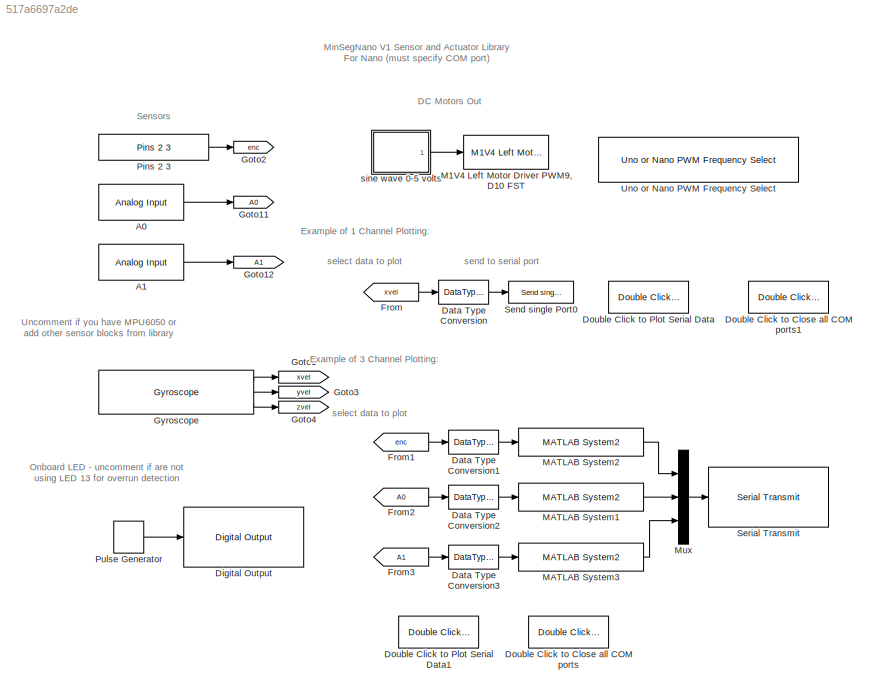
MODEL slx_517a6697a2de
KIND model
CONFIG AbsTol = auto
CONFIG FixedStep = auto
CONFIG MaxStep = auto
CONFIG MinStep = auto
CONFIG RelTol = 1e-3
CONFIG SampleTimeConstraint = Unconstrained
CONFIG Solver = ode45
CONFIG SolverMode = Auto
CONFIG SolverName = ode45
CONFIG StartTime = 0.0
CONFIG StopTime = 10.0
BLOCK [Reference] A0  REF=arduinolib/Analog Input
  Ports = [0, 1]
  SourceBlock = arduinolib/Analog Input
  SourceType = Arduino Analog Input
  blockPlatform = arduino
  pinNumber = 0
  sampleTime = -1
BLOCK [Reference] A1  REF=arduinolib/Analog Input
  Ports = [0, 1]
  SourceBlock = arduinolib/Analog Input
  SourceType = Arduino Analog Input
  blockPlatform = arduino
  pinNumber = 1
  sampleTime = -1
BLOCK [DataTypeConversion] Data Type Conversion
  Commented = on
  OutDataTypeStr = single
  RndMeth = Floor
  SaturateOnIntegerOverflow = off
BLOCK [DataTypeConversion] Data Type Conversion1
  OutDataTypeStr = single
  RndMeth = Floor
  SaturateOnIntegerOverflow = off
BLOCK [DataTypeConversion] Data Type Conversion2
  OutDataTypeStr = single
  RndMeth = Floor
  SaturateOnIntegerOverflow = off
BLOCK [DataTypeConversion] Data Type Conversion3
  OutDataTypeStr = single
  RndMeth = Floor
  SaturateOnIntegerOverflow = off
BLOCK [Reference] Digital Output  REF=arduinolib/Digital Output
  Commented = on
  Ports = [1]
  SourceBlock = arduinolib/Digital Output
  SourceType = Arduino Digital Output
  blockPlatform = arduino
  pinNumber = 13
BLOCK [Reference] Double Click to Close all COM ports  REF=RASPlib/Double Click to
Close all COM ports
  Ports = []
  SourceBlock = RASPlib/Double Click to\nClose all COM ports
BLOCK [Reference] Double Click to Close all COM ports1  REF=RASPlib/Double Click to
Close all COM ports
  Commented = on
  Ports = []
  SourceBlock = RASPlib/Double Click to\nClose all COM ports
BLOCK [Reference] Double Click to Plot Serial Data  REF=RASPlib/Double Click to
Plot Serial Data
  BaudRate = 9600
  COMport = 5
  Commented = on
  DataType = single
  Ncx = 1
  NumSamples = 500
  Ports = []
  SourceBlock = RASPlib/Double Click to\nPlot Serial Data
BLOCK [Reference] Double Click to Plot Serial Data1  REF=RASPlib/Double Click to
Plot Serial Data
  BaudRate = 9600
  COMport = 5
  DataType = single
  Ncx = 3
  NumSamples = 500
  Ports = []
  SourceBlock = RASPlib/Double Click to\nPlot Serial Data
BLOCK [From] From
  Commented = on
  GotoTag = xvel
BLOCK [From] From1
  GotoTag = enc
BLOCK [From] From2
  GotoTag = A0
BLOCK [From] From3
  GotoTag = A1
BLOCK [Goto] Goto1
  Commented = on
  GotoTag = xvel
BLOCK [Goto] Goto11
  GotoTag = A0
BLOCK [Goto] Goto12
  GotoTag = A1
BLOCK [Goto] Goto2
  GotoTag = enc
BLOCK [Goto] Goto3
  Commented = on
  GotoTag = yvel
BLOCK [Goto] Goto4
  Commented = on
  GotoTag = zvel
BLOCK [Reference] Gyroscope  REF=RASPlib/Gyroscope
  Commented = on
  DLPFmode = 0
  Ports = [0, 3]
  SourceBlock = RASPlib/Gyroscope
  SourceType = soMPU6050Gyro
BLOCK [Reference] M1V4 Left Motor Driver PWM9, D10 FST  REF=MinSegLibrary_MinSegNano/M1V4 Left Motor Driver
PWM9, D10 FST
  Ports = [1]
  SourceBlock = MinSegLibrary_MinSegNano/M1V4 Left Motor Driver\nPWM9, D10 FST
  SourceType = Motor Driver
  Vsupply = 3.25
BLOCK [Reference] MATLAB System1  REF=RASPlib/Send single Port0/MATLAB System2
  Ports = [1, 1]
  SimulateUsing = Code generation
  SourceBlock = RASPlib/Send single Port0/MATLAB System2
  SourceType = so_float2bytes
BLOCK [Reference] MATLAB System2  REF=RASPlib/Send single Port0/MATLAB System2
  Ports = [1, 1]
  SimulateUsing = Code generation
  SourceBlock = RASPlib/Send single Port0/MATLAB System2
  SourceType = so_float2bytes
BLOCK [Reference] MATLAB System3  REF=RASPlib/Send single Port0/MATLAB System2
  Ports = [1, 1]
  SimulateUsing = Code generation
  SourceBlock = RASPlib/Send single Port0/MATLAB System2
  SourceType = so_float2bytes
BLOCK [Mux] Mux
  DisplayOption = bar
  Inputs = 3
  Ports = [3, 1]
BLOCK [Reference] Pins 2 3  REF=MinSegLibrary_MinSegNano/Pins 2 3
  Encoder = 0
  PinA = 2
  PinB = 3
  Ports = [0, 1]
  SourceBlock = MinSegLibrary_MinSegNano/Pins 2 3
  SourceType = Encoder_arduino_uno_nano
BLOCK [DiscretePulseGenerator] Pulse Generator
  Commented = on
  Period = 10
  Ports = [0, 1]
  PulseType = Time based
  PulseWidth = 5
BLOCK [Reference] Send single Port0  REF=RASPlib/Send single Port0
  Commented = on
  Ports = [1]
  SourceBlock = RASPlib/Send single Port0
  SourceType = SubSystem
BLOCK [Reference] Serial Transmit  REF=arduinolib/Serial Transmit
  Ports = [1]
  SourceBlock = arduinolib/Serial Transmit
  SourceType = Arduino Serial Transmit
  blockPlatform = arduino
  portNumber = 0
BLOCK [Reference] Uno or Nano PWM Frequency Select  REF=RASPlib/Uno or Nano PWM Frequency Select
  Frequency = 490Hz
  Ports = []
  SourceBlock = RASPlib/Uno or Nano PWM Frequency Select
  Timer = 1 - pins 9, 10
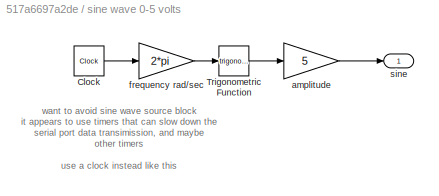
BLOCK [SubSystem] sine wave 0-5 volts
  Ports = [0, 1]
  RequestExecContextInheritance = off
BLOCK [Clock] sine wave 0-5 volts/Clock
BLOCK [Trigonometry] sine wave 0-5 volts/Trigonometric Function
  Ports = [1, 1]
BLOCK [Gain] sine wave 0-5 volts/amplitude
  Gain = 5
  OutDataTypeStr = Inherit: Inherit via internal rule
  ParamDataTypeStr = Inherit: Inherit via internal rule
  SaturateOnIntegerOverflow = off
BLOCK [Gain] sine wave 0-5 volts/frequency rad//sec
  Gain = 2*pi
  OutDataTypeStr = Inherit: Inherit via internal rule
  ParamDataTypeStr = Inherit: Inherit via internal rule
  SaturateOnIntegerOverflow = off
BLOCK [Outport] sine wave 0-5 volts/sine
  IconDisplay = Port number
ANNOTATION (root): Example of 1 Channel Plotting:
ANNOTATION (root): Example of 3 Channel Plotting:
ANNOTATION (root): DC Motors Out
ANNOTATION (root): MinSegNano V1 Sensor and Actuator Library For Nano (must specify COM port)
ANNOTATION (root): Onboard LED - uncomment if are not using LED 13 for overrun detection
ANNOTATION (root): Sensors
ANNOTATION (root): Uncomment if you have MPU6050 or add other sensor blocks from library
ANNOTATION (root): select data to plot
ANNOTATION (root): send to serial port
ANNOTATION sine wave 0-5 volts: want to avoid sine wave source block it appears to use timers that can slow down the serial port data transimission, and maybe other timers use a clock instead like this
LINE A0:1 -> Goto11:1
LINE A1:1 -> Goto12:1
LINE Data Type Conversion1:1 -> MATLAB System2:1
LINE Data Type Conversion2:1 -> MATLAB System1:1
LINE Data Type Conversion3:1 -> MATLAB System3:1
LINE Data Type Conversion:1 -> Send single Port0:1
LINE From1:1 -> Data Type Conversion1:1
LINE From2:1 -> Data Type Conversion2:1
LINE From3:1 -> Data Type Conversion3:1
LINE From:1 -> Data Type Conversion:1
LINE Gyroscope:1 -> Goto1:1
LINE Gyroscope:2 -> Goto3:1
LINE Gyroscope:3 -> Goto4:1
LINE MATLAB System1:1 -> Mux:2
LINE MATLAB System2:1 -> Mux:1
LINE MATLAB System3:1 -> Mux:3
LINE Mux:1 -> Serial Transmit:1
LINE Pins 2 3:1 -> Goto2:1
LINE Pulse Generator:1 -> Digital Output:1
LINE sine wave 0-5 volts/Clock:1 -> sine wave 0-5 volts/frequency rad//sec:1
LINE sine wave 0-5 volts/Trigonometric Function:1 -> sine wave 0-5 volts/amplitude:1
LINE sine wave 0-5 volts/amplitude:1 -> sine wave 0-5 volts/sine:1
LINE sine wave 0-5 volts/frequency rad//sec:1 -> sine wave 0-5 volts/Trigonometric Function:1
LINE sine wave 0-5 volts:1 -> M1V4 Left Motor Driver PWM9, D10 FST:1
